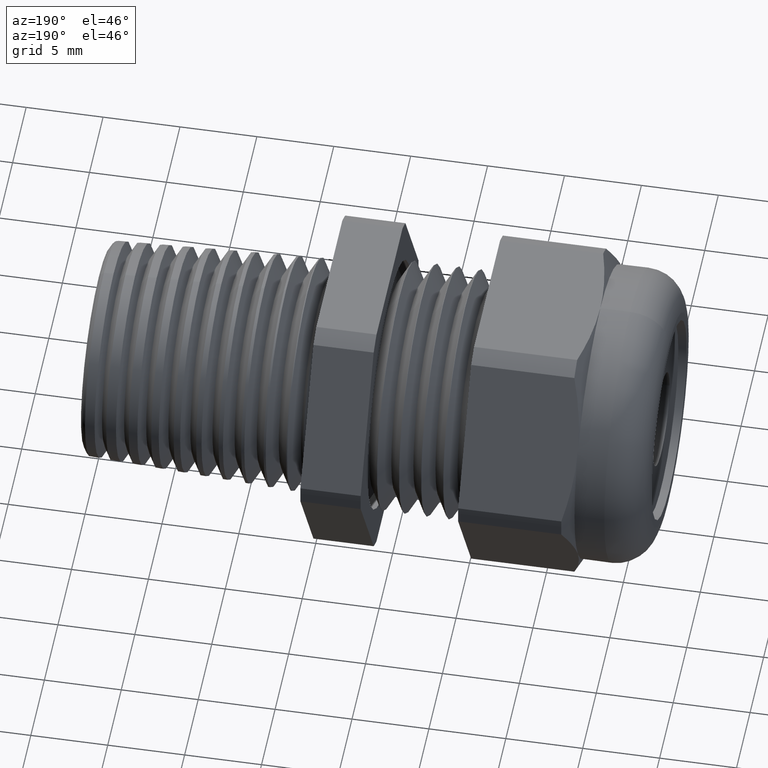
[diagram: clean part render]
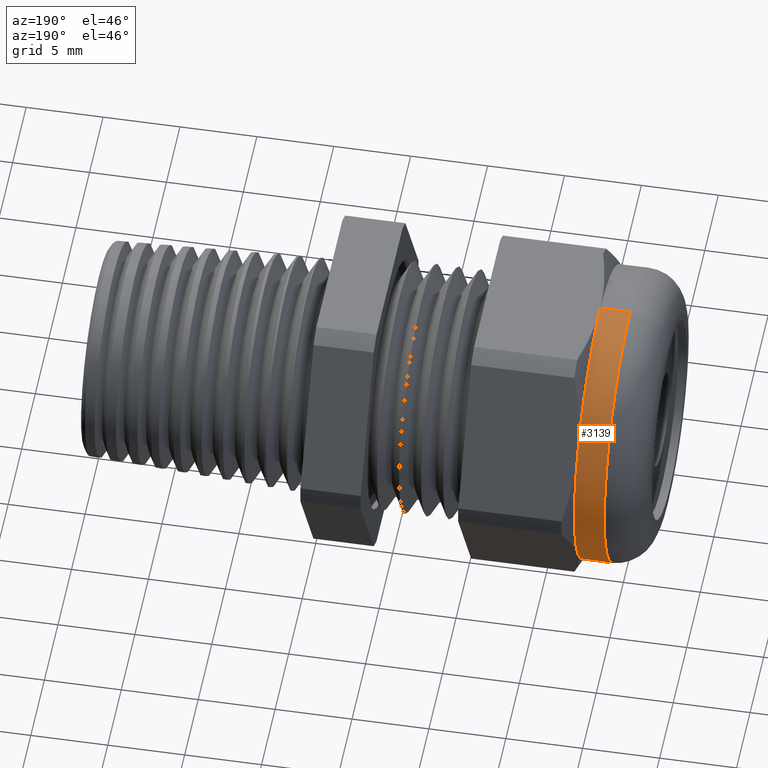
[diagram: same view with one face highlighted and labeled with its STEP entity id]
A machine part, auxiliary view. The second image highlights one B-rep face of the part: STEP entity #3139.
In plain terms, the highlighted cylindrical surface (partial cylindrical patch) has radius 9.525 mm, axis along (-1, -0, -0).
Its self-contained STEP definition (entity closure, byte-faithful):
#1073 = CARTESIAN_POINT ( 'NONE',  ( -0.6937499999999999800, 0.0000000000000000000, -0.3749999999999998900 ) ) ;
#1105 = DIRECTION ( 'NONE',  ( 0.0000000000000000000, 0.0000000000000000000, 1.000000000000000000 ) ) ;
#1106 = DIRECTION ( 'NONE',  ( -1.000000000000000000, -0.0000000000000000000, -0.0000000000000000000 ) ) ;
#1107 = AXIS2_PLACEMENT_3D ( 'NONE', #1116, #1106, #1105 ) ;
#1116 = CARTESIAN_POINT ( 'NONE',  ( -0.7238591030180623300, 0.0000000000000000000, 0.0000000000000000000 ) ) ;
#1117 = CYLINDRICAL_SURFACE ( 'NONE', #1107, 0.3749999999999998300 ) ;
#1118 = CARTESIAN_POINT ( 'NONE',  ( -0.6937499999999999800, 0.3247595264191643900, -0.1874999999999998900 ) ) ;
#1120 = FACE_OUTER_BOUND ( 'NONE', #3144, .T. ) ;
#1153 = DIRECTION ( 'NONE',  ( 0.0000000000000000000, 0.0000000000000000000, 1.000000000000000000 ) ) ;
#1154 = DIRECTION ( 'NONE',  ( -1.000000000000000000, -0.0000000000000000000, -0.0000000000000000000 ) ) ;
#1155 = CARTESIAN_POINT ( 'NONE',  ( -0.6937499999999999800, 0.0000000000000000000, 0.0000000000000000000 ) ) ;
#1156 = AXIS2_PLACEMENT_3D ( 'NONE', #1155, #1154, #1153 ) ;
#1157 = CIRCLE ( 'NONE', #1156, 0.3749999999999998900 ) ;
#1385 = CARTESIAN_POINT ( 'NONE',  ( -0.7700000000000000200, 0.0000000000000000000, 0.3749999999999998300 ) ) ;
#1386 = DIRECTION ( 'NONE',  ( 0.0000000000000000000, 0.0000000000000000000, -1.000000000000000000 ) ) ;
#1387 = DIRECTION ( 'NONE',  ( 1.000000000000000000, 0.0000000000000000000, 0.0000000000000000000 ) ) ;
#1388 = CARTESIAN_POINT ( 'NONE',  ( -0.7700000000000000200, 0.0000000000000000000, 0.0000000000000000000 ) ) ;
#1389 = AXIS2_PLACEMENT_3D ( 'NONE', #1388, #1387, #1386 ) ;
#1390 = CIRCLE ( 'NONE', #1389, 0.3749999999999998300 ) ;
#1437 = CARTESIAN_POINT ( 'NONE',  ( -0.7700000000000000200, 4.592273826833912300E-017, -0.3749999999999998300 ) ) ;
#2441 = DIRECTION ( 'NONE',  ( -1.000000000000000000, -0.0000000000000000000, -0.0000000000000000000 ) ) ;
#2442 = VECTOR ( 'NONE', #2441, 39.37007874015748100 ) ;
#2443 = CARTESIAN_POINT ( 'NONE',  ( -0.7238591030180623300, 0.0000000000000000000, 0.3749999999999998300 ) ) ;
#2444 = LINE ( 'NONE', #2443, #2442 ) ;
#2445 = CARTESIAN_POINT ( 'NONE',  ( -0.6937499999999999800, 0.0000000000000000000, 0.3749999999999998900 ) ) ;
#2527 = DIRECTION ( 'NONE',  ( -1.000000000000000000, -0.0000000000000000000, -0.0000000000000000000 ) ) ;
#2528 = VECTOR ( 'NONE', #2527, 39.37007874015748100 ) ;
#2529 = CARTESIAN_POINT ( 'NONE',  ( -0.7238591030180623300, 4.592273826833912300E-017, -0.3749999999999998300 ) ) ;
#2530 = LINE ( 'NONE', #2529, #2528 ) ;
#2531 = DIRECTION ( 'NONE',  ( 0.0000000000000000000, 0.0000000000000000000, 1.000000000000000000 ) ) ;
#2532 = DIRECTION ( 'NONE',  ( -1.000000000000000000, -0.0000000000000000000, -0.0000000000000000000 ) ) ;
#2533 = CARTESIAN_POINT ( 'NONE',  ( -0.6937499999999999800, 0.0000000000000000000, 0.0000000000000000000 ) ) ;
#2534 = AXIS2_PLACEMENT_3D ( 'NONE', #2533, #2532, #2531 ) ;
#2535 = CIRCLE ( 'NONE', #2534, 0.3749999999999998900 ) ;
#2544 = CARTESIAN_POINT ( 'NONE',  ( -0.6937499999999999800, 0.3247595264191643900, 0.1874999999999999200 ) ) ;
#2564 = DIRECTION ( 'NONE',  ( 0.0000000000000000000, 0.0000000000000000000, 1.000000000000000000 ) ) ;
#2565 = DIRECTION ( 'NONE',  ( -1.000000000000000000, -0.0000000000000000000, -0.0000000000000000000 ) ) ;
#2566 = CARTESIAN_POINT ( 'NONE',  ( -0.6937499999999999800, 0.0000000000000000000, 0.0000000000000000000 ) ) ;
#2567 = AXIS2_PLACEMENT_3D ( 'NONE', #2566, #2565, #2564 ) ;
#2568 = CIRCLE ( 'NONE', #2567, 0.3749999999999998900 ) ;
#3129 = ORIENTED_EDGE ( 'NONE', *, *, #3148, .T. ) ;
#3132 = VERTEX_POINT ( 'NONE', #1073 ) ;
#3137 = VERTEX_POINT ( 'NONE', #1118 ) ;
#3138 = ORIENTED_EDGE ( 'NONE', *, *, #3985, .T. ) ;
#3139 = ADVANCED_FACE ( 'NONE', ( #1120 ), #1117, .T. ) ;
#3144 = EDGE_LOOP ( 'NONE', ( #3129, #3138, #3984, #3939, #3981, #3986 ) ) ;
#3148 = EDGE_CURVE ( 'NONE', #3137, #3132, #1157, .T. ) ;
#3356 = EDGE_CURVE ( 'NONE', #3367, #3357, #1390, .T. ) ;
#3357 = VERTEX_POINT ( 'NONE', #1385 ) ;
#3367 = VERTEX_POINT ( 'NONE', #1437 ) ;
#3939 = ORIENTED_EDGE ( 'NONE', *, *, #3941, .F. ) ;
#3940 = VERTEX_POINT ( 'NONE', #2445 ) ;
#3941 = EDGE_CURVE ( 'NONE', #3940, #3357, #2444, .T. ) ;
#3980 = VERTEX_POINT ( 'NONE', #2544 ) ;
#3981 = ORIENTED_EDGE ( 'NONE', *, *, #3983, .T. ) ;
#3983 = EDGE_CURVE ( 'NONE', #3940, #3980, #2535, .T. ) ;
#3984 = ORIENTED_EDGE ( 'NONE', *, *, #3356, .T. ) ;
#3985 = EDGE_CURVE ( 'NONE', #3132, #3367, #2530, .T. ) ;
#3986 = ORIENTED_EDGE ( 'NONE', *, *, #3993, .T. ) ;
#3993 = EDGE_CURVE ( 'NONE', #3980, #3137, #2568, .T. ) ;